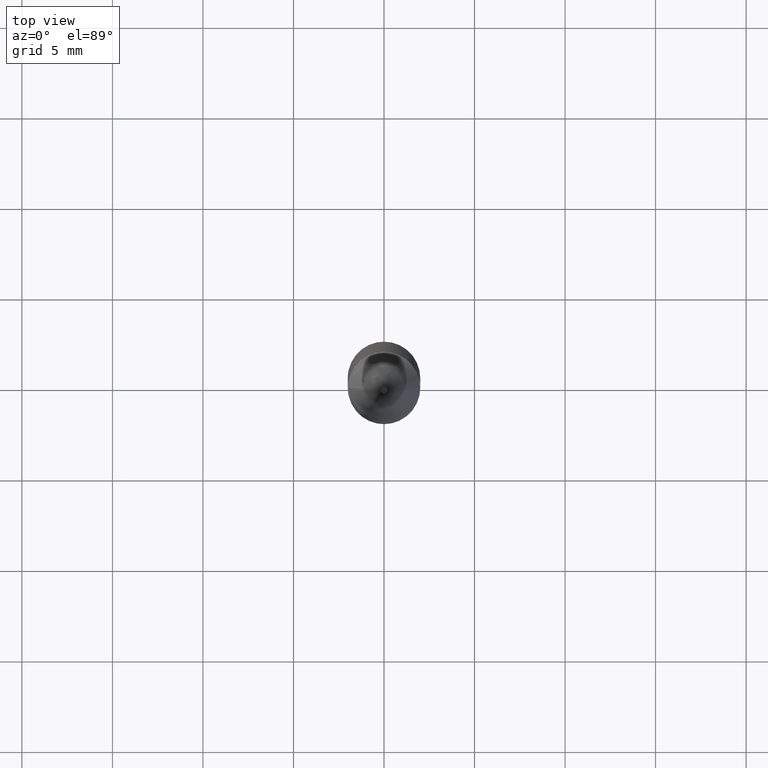
[diagram: clean part render]
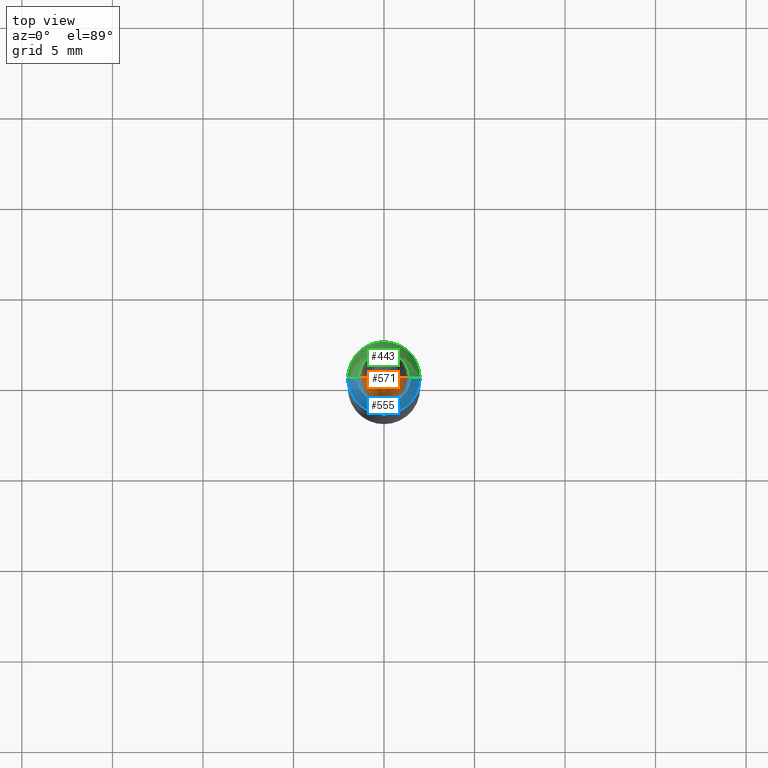
[diagram: same view with three faces highlighted in distinct colors, each labeled with its STEP entity id]
A machine part, top view with three faces highlighted in distinct colors.
Their STEP definitions:

[orange] entity #571 — the highlighted face is a freeform B-spline surface patch.
#217=CARTESIAN_POINT('',(1.4,0.0,32.482));
#221=CARTESIAN_POINT('',(-1.4,0.0,32.482));
#222=CARTESIAN_POINT('',(0.0,0.0,32.482));
#232=CARTESIAN_POINT('',(-1.4,-1.4,32.482));
#233=CARTESIAN_POINT('',(0.0,-1.4,32.482));
#234=CARTESIAN_POINT('',(1.4,-1.4,32.482));
#556=(
BOUNDED_SURFACE()
B_SPLINE_SURFACE(1,2,(
(#221,#232,#233,#234,#217),
(#222,#222,#222,#222,#222)
), .UNSPECIFIED.,.F.,.F.,.F.)
B_SPLINE_SURFACE_WITH_KNOTS((2,2),(3,2,3),(
0.0,1.0),(
0.0,0.5,1.0), .UNSPECIFIED.)
GEOMETRIC_REPRESENTATION_ITEM()
RATIONAL_B_SPLINE_SURFACE(((1.0,0.707106781187,1.0,0.707106781187,1.0),
(1.0,0.707106781187,1.0,0.707106781187,1.0)
))
REPRESENTATION_ITEM('')
SURFACE()
);
#557=(
BOUNDED_CURVE()
B_SPLINE_CURVE(1,(#222,#217),.UNSPECIFIED.,.F.,.F.)
B_SPLINE_CURVE_WITH_KNOTS((2,2),
(0.0,1.0),.UNSPECIFIED.)
CURVE()
GEOMETRIC_REPRESENTATION_ITEM()
RATIONAL_B_SPLINE_CURVE((1.0,1.0))
REPRESENTATION_ITEM('')
);
#558=(
BOUNDED_CURVE()
B_SPLINE_CURVE(2,(#217,#234,#233,#232,#221),.UNSPECIFIED.,.F.,.F.)
B_SPLINE_CURVE_WITH_KNOTS((3,2,3),
(0.0,0.5,1.0),.UNSPECIFIED.)
CURVE()
GEOMETRIC_REPRESENTATION_ITEM()
RATIONAL_B_SPLINE_CURVE((1.0,0.707106781187,1.0,0.707106781187,1.0))
REPRESENTATION_ITEM('')
);
#559=(
BOUNDED_CURVE()
B_SPLINE_CURVE(1,(#221,#222),.UNSPECIFIED.,.F.,.F.)
B_SPLINE_CURVE_WITH_KNOTS((2,2),
(0.0,1.0),.UNSPECIFIED.)
CURVE()
GEOMETRIC_REPRESENTATION_ITEM()
RATIONAL_B_SPLINE_CURVE((1.0,1.0))
REPRESENTATION_ITEM('')
);
#560=VERTEX_POINT('',#217);
#561=VERTEX_POINT('',#221);
#562=VERTEX_POINT('',#222);
#563=EDGE_CURVE('',#562,#560,#557,.T.);
#564=EDGE_CURVE('',#560,#561,#558,.T.);
#565=EDGE_CURVE('',#561,#562,#559,.T.);
#566=ORIENTED_EDGE('',*,*,#563,.T.);
#567=ORIENTED_EDGE('',*,*,#564,.T.);
#568=ORIENTED_EDGE('',*,*,#565,.T.);
#569=EDGE_LOOP('',(#566,#567,#568));
#570=FACE_OUTER_BOUND('',#569,.T.);
#571=ADVANCED_FACE('',(#570),#556,.T.);

[blue] entity #555 — the highlighted face is a freeform B-spline surface patch.
#212=CARTESIAN_POINT('',(2.0,0.0,31.882));
#216=CARTESIAN_POINT('',(-2.0,0.0,31.882));
#217=CARTESIAN_POINT('',(1.4,0.0,32.482));
#221=CARTESIAN_POINT('',(-1.4,0.0,32.482));
#229=CARTESIAN_POINT('',(-2.0,-2.0,31.882));
#230=CARTESIAN_POINT('',(0.0,-2.0,31.882));
#231=CARTESIAN_POINT('',(2.0,-2.0,31.882));
#232=CARTESIAN_POINT('',(-1.4,-1.4,32.482));
#233=CARTESIAN_POINT('',(0.0,-1.4,32.482));
#234=CARTESIAN_POINT('',(1.4,-1.4,32.482));
#536=(
BOUNDED_SURFACE()
B_SPLINE_SURFACE(1,2,(
(#216,#229,#230,#231,#212),
(#221,#232,#233,#234,#217)
), .UNSPECIFIED.,.F.,.F.,.F.)
B_SPLINE_SURFACE_WITH_KNOTS((2,2),(3,2,3),(
0.0,1.0),(
0.0,0.5,1.0), .UNSPECIFIED.)
GEOMETRIC_REPRESENTATION_ITEM()
RATIONAL_B_SPLINE_SURFACE(((1.0,0.707106781187,1.0,0.707106781187,1.0),
(1.0,0.707106781187,1.0,0.707106781187,1.0)
))
REPRESENTATION_ITEM('')
SURFACE()
);
#537=(
BOUNDED_CURVE()
B_SPLINE_CURVE(2,(#221,#232,#233,#234,#217),.UNSPECIFIED.,.F.,.F.)
B_SPLINE_CURVE_WITH_KNOTS((3,2,3),
(0.0,0.5,1.0),.UNSPECIFIED.)
CURVE()
GEOMETRIC_REPRESENTATION_ITEM()
RATIONAL_B_SPLINE_CURVE((1.0,0.707106781187,1.0,0.707106781187,1.0))
REPRESENTATION_ITEM('')
);
#538=(
BOUNDED_CURVE()
B_SPLINE_CURVE(1,(#217,#212),.UNSPECIFIED.,.F.,.F.)
B_SPLINE_CURVE_WITH_KNOTS((2,2),
(0.0,1.0),.UNSPECIFIED.)
CURVE()
GEOMETRIC_REPRESENTATION_ITEM()
RATIONAL_B_SPLINE_CURVE((1.0,1.0))
REPRESENTATION_ITEM('')
);
#539=(
BOUNDED_CURVE()
B_SPLINE_CURVE(2,(#212,#231,#230,#229,#216),.UNSPECIFIED.,.F.,.F.)
B_SPLINE_CURVE_WITH_KNOTS((3,2,3),
(0.0,0.5,1.0),.UNSPECIFIED.)
CURVE()
GEOMETRIC_REPRESENTATION_ITEM()
RATIONAL_B_SPLINE_CURVE((1.0,0.707106781187,1.0,0.707106781187,1.0))
REPRESENTATION_ITEM('')
);
#540=(
BOUNDED_CURVE()
B_SPLINE_CURVE(1,(#216,#221),.UNSPECIFIED.,.F.,.F.)
B_SPLINE_CURVE_WITH_KNOTS((2,2),
(0.0,1.0),.UNSPECIFIED.)
CURVE()
GEOMETRIC_REPRESENTATION_ITEM()
RATIONAL_B_SPLINE_CURVE((1.0,1.0))
REPRESENTATION_ITEM('')
);
#541=VERTEX_POINT('',#212);
#542=VERTEX_POINT('',#216);
#543=VERTEX_POINT('',#217);
#544=VERTEX_POINT('',#221);
#545=EDGE_CURVE('',#544,#543,#537,.T.);
#546=EDGE_CURVE('',#543,#541,#538,.T.);
#547=EDGE_CURVE('',#541,#542,#539,.T.);
#548=EDGE_CURVE('',#542,#544,#540,.T.);
#549=ORIENTED_EDGE('',*,*,#545,.T.);
#550=ORIENTED_EDGE('',*,*,#546,.T.);
#551=ORIENTED_EDGE('',*,*,#547,.T.);
#552=ORIENTED_EDGE('',*,*,#548,.T.);
#553=EDGE_LOOP('',(#549,#550,#551,#552));
#554=FACE_OUTER_BOUND('',#553,.T.);
#555=ADVANCED_FACE('',(#554),#536,.T.);

[green] entity #443 — the highlighted face is a freeform B-spline surface patch.
#212=CARTESIAN_POINT('',(2.0,0.0,31.882));
#213=CARTESIAN_POINT('',(2.0,2.0,31.882));
#214=CARTESIAN_POINT('',(0.0,2.0,31.882));
#215=CARTESIAN_POINT('',(-2.0,2.0,31.882));
#216=CARTESIAN_POINT('',(-2.0,0.0,31.882));
#217=CARTESIAN_POINT('',(1.4,0.0,32.482));
#218=CARTESIAN_POINT('',(1.4,1.4,32.482));
#219=CARTESIAN_POINT('',(0.0,1.4,32.482));
#220=CARTESIAN_POINT('',(-1.4,1.4,32.482));
#221=CARTESIAN_POINT('',(-1.4,0.0,32.482));
#424=(
BOUNDED_SURFACE()
B_SPLINE_SURFACE(1,2,(
(#212,#213,#214,#215,#216),
(#217,#218,#219,#220,#221)
), .UNSPECIFIED.,.F.,.F.,.F.)
B_SPLINE_SURFACE_WITH_KNOTS((2,2),(3,2,3),(
0.0,1.0),(
0.0,0.5,1.0), .UNSPECIFIED.)
GEOMETRIC_REPRESENTATION_ITEM()
RATIONAL_B_SPLINE_SURFACE(((1.0,0.707106781187,1.0,0.707106781187,1.0),
(1.0,0.707106781187,1.0,0.707106781187,1.0)
))
REPRESENTATION_ITEM('')
SURFACE()
);
#425=(
BOUNDED_CURVE()
B_SPLINE_CURVE(1,(#217,#212),.UNSPECIFIED.,.F.,.F.)
B_SPLINE_CURVE_WITH_KNOTS((2,2),
(0.0,1.0),.UNSPECIFIED.)
CURVE()
GEOMETRIC_REPRESENTATION_ITEM()
RATIONAL_B_SPLINE_CURVE((1.0,1.0))
REPRESENTATION_ITEM('')
);
#426=(
BOUNDED_CURVE()
B_SPLINE_CURVE(2,(#212,#213,#214,#215,#216),.UNSPECIFIED.,.F.,.F.)
B_SPLINE_CURVE_WITH_KNOTS((3,2,3),
(0.0,0.5,1.0),.UNSPECIFIED.)
CURVE()
GEOMETRIC_REPRESENTATION_ITEM()
RATIONAL_B_SPLINE_CURVE((1.0,0.707106781187,1.0,0.707106781187,1.0))
REPRESENTATION_ITEM('')
);
#427=(
BOUNDED_CURVE()
B_SPLINE_CURVE(1,(#216,#221),.UNSPECIFIED.,.F.,.F.)
B_SPLINE_CURVE_WITH_KNOTS((2,2),
(0.0,1.0),.UNSPECIFIED.)
CURVE()
GEOMETRIC_REPRESENTATION_ITEM()
RATIONAL_B_SPLINE_CURVE((1.0,1.0))
REPRESENTATION_ITEM('')
);
#428=(
BOUNDED_CURVE()
B_SPLINE_CURVE(2,(#221,#220,#219,#218,#217),.UNSPECIFIED.,.F.,.F.)
B_SPLINE_CURVE_WITH_KNOTS((3,2,3),
(0.0,0.5,1.0),.UNSPECIFIED.)
CURVE()
GEOMETRIC_REPRESENTATION_ITEM()
RATIONAL_B_SPLINE_CURVE((1.0,0.707106781187,1.0,0.707106781187,1.0))
REPRESENTATION_ITEM('')
);
#429=VERTEX_POINT('',#212);
#430=VERTEX_POINT('',#216);
#431=VERTEX_POINT('',#217);
#432=VERTEX_POINT('',#221);
#433=EDGE_CURVE('',#431,#429,#425,.T.);
#434=EDGE_CURVE('',#429,#430,#426,.T.);
#435=EDGE_CURVE('',#430,#432,#427,.T.);
#436=EDGE_CURVE('',#432,#431,#428,.T.);
#437=ORIENTED_EDGE('',*,*,#433,.T.);
#438=ORIENTED_EDGE('',*,*,#434,.T.);
#439=ORIENTED_EDGE('',*,*,#435,.T.);
#440=ORIENTED_EDGE('',*,*,#436,.T.);
#441=EDGE_LOOP('',(#437,#438,#439,#440));
#442=FACE_OUTER_BOUND('',#441,.T.);
#443=ADVANCED_FACE('',(#442),#424,.T.);